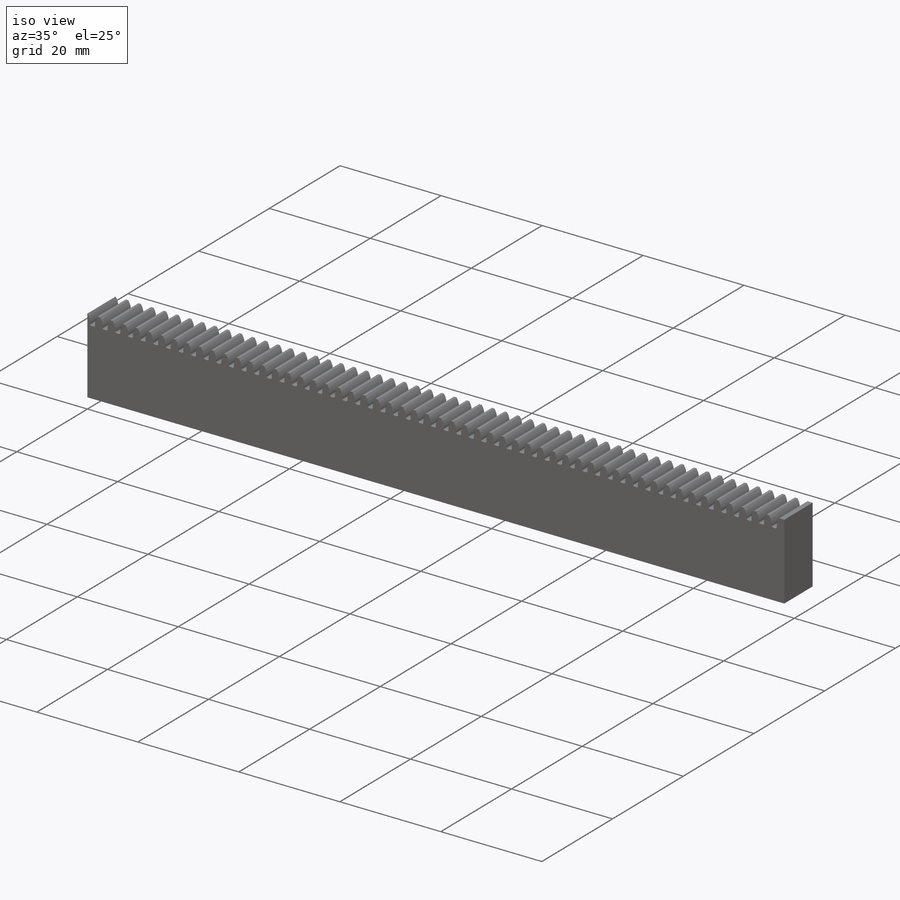
[diagram: iso view]
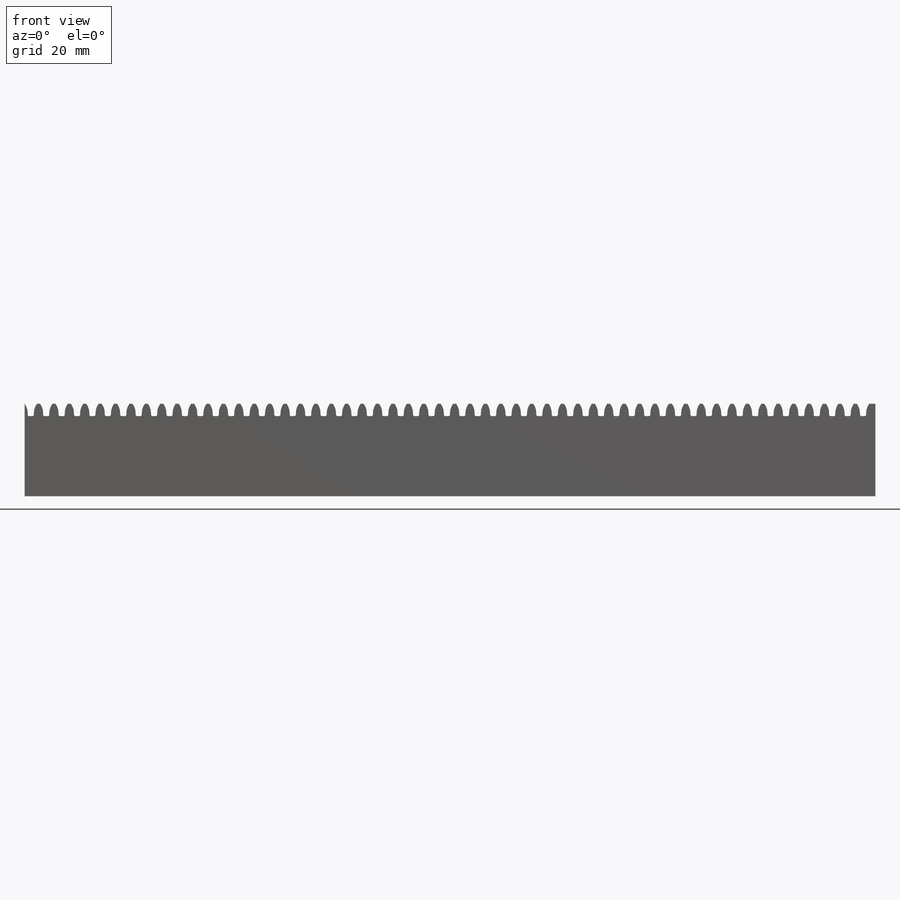
[diagram: front view]
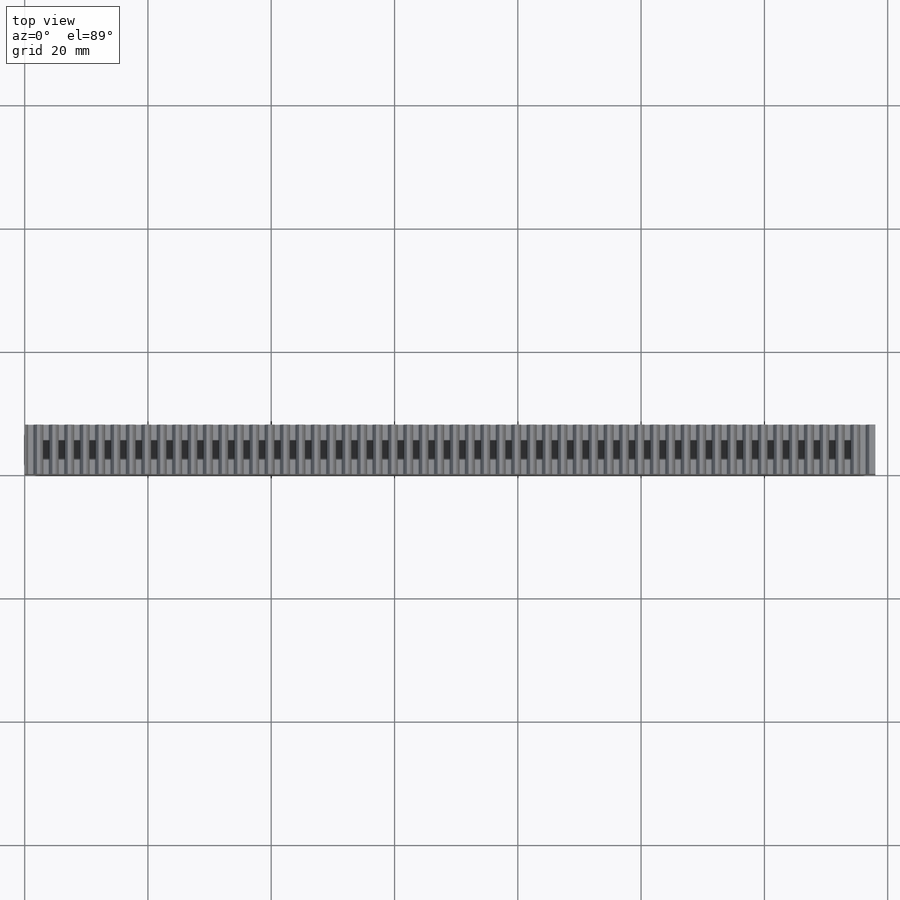
[diagram: top view]
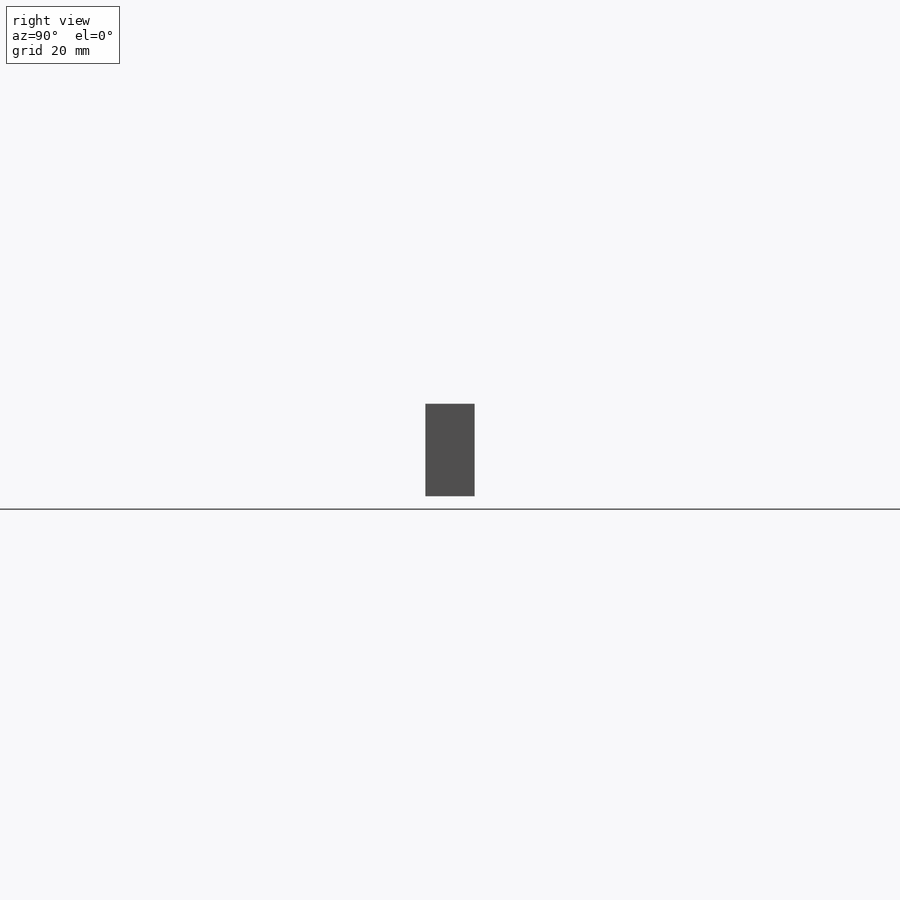
[diagram: right view]
SOLIDWORKS PART (.sldprt)
format: sldprt  version: not decoded by parser v0  size: 887,296 bytes
history: native  units: mm
features: plane x3, sketch x2, material x1, extrude x1, cut_extrude x1, fillet x1, pattern_linear x1 (+11 scaffold rows collapsed)
feature tree (21):
  scaffold x11  (default folders/planes/origin — collapsed)
  material  "Matériau <non spécifié>"
  plane  "Face"
  plane  "Dessus"
  plane  "Droite"
  sketch  "Esquisse1"  dims[D1=138.0mm D2=8.0mm]
  extrude  "Extrusion1"  Depth=15mm
  sketch  "Esquisse2"  dims[D1=14.0mm D2=0.5mm D3=0.5mm D4=0.5mm]
  cut_extrude  "Extrusion2"  [1 undecoded]
  fillet  "Congé2"  Radius=0.25mm
  pattern_linear  "Répétition linéaire2"  Count1=55 Count2=1 Spacing1=2.5mm Spacing2=50mm
decode coverage: 5 of 6 modeling features carry decoded parameters
note: 1 parameter value undecoded
note: suppression state not decoded; provenance and decode notes live in map.json
